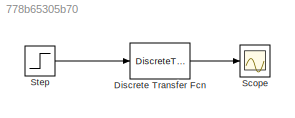
MODEL slx_778b65305b70
KIND model
BLOCK [DiscreteTransferFcn] Discrete Transfer Fcn
  Denominator = [1 -0.995]
  InputPortMap = u0
  Numerator = [0.005]
  Ports = [1, 1]
  SampleTime = 0.01
BLOCK [Scope] Scope
  DataFormat = StructureWithTime
  Floating = off
  NumInputPorts = 1
  Ports = [1]
  SampleTime = 0
  ShowLegends = off
BLOCK [Step] Step
  SampleTime = 0
LINE Discrete Transfer Fcn:1 -> Scope:1
LINE Step:1 -> Discrete Transfer Fcn:1
